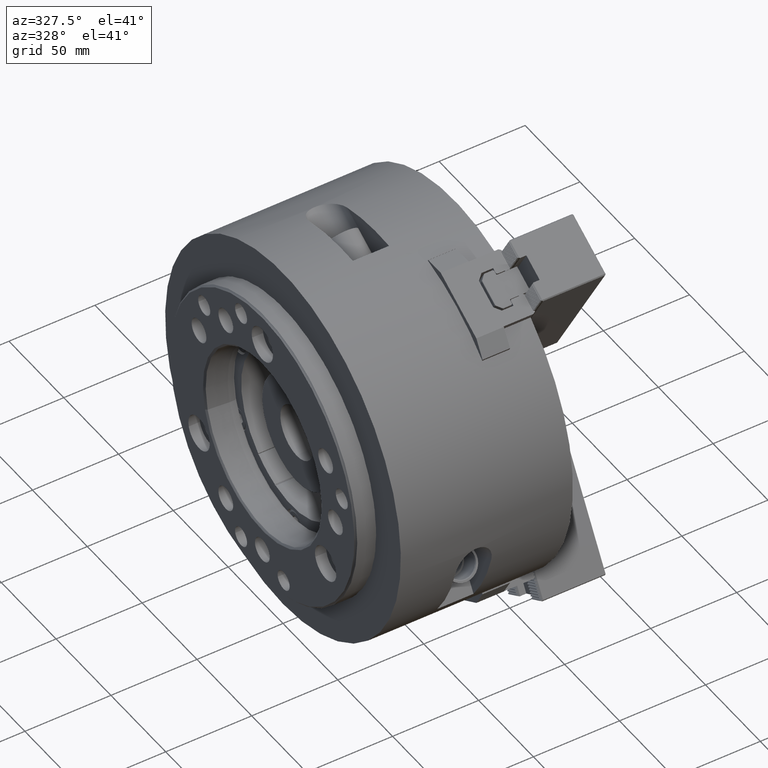
[diagram: clean part render]
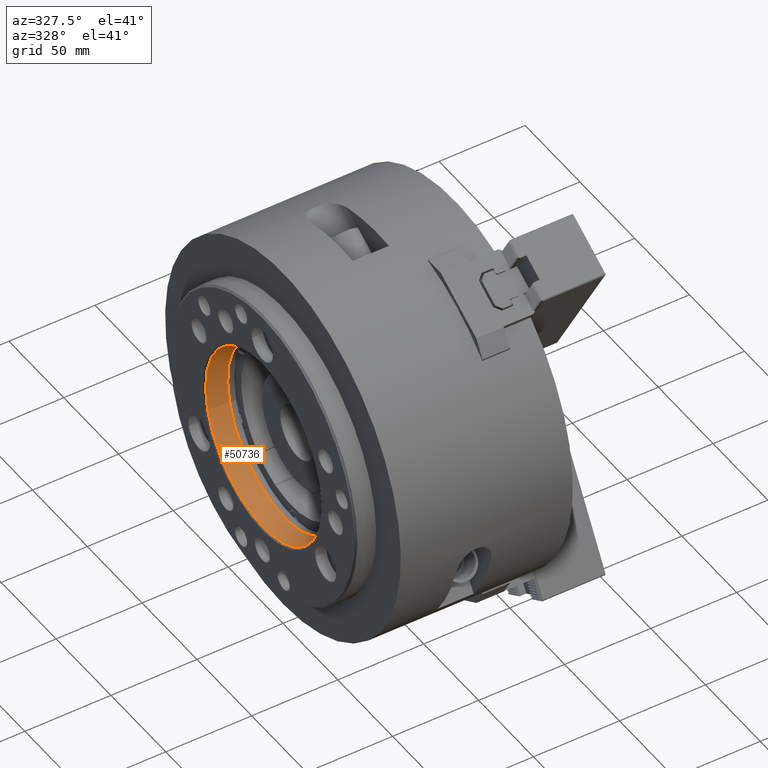
[diagram: same view with one face highlighted and labeled with its STEP entity id]
A machine part, auxiliary view. The second image highlights one B-rep face of the part: STEP entity #50736.
In plain terms, the highlighted conical surface has half-angle 7.125 deg.
Its self-contained STEP definition (entity closure, byte-faithful):
#15826=ORIENTED_EDGE('',*,*,#30600,.F.);
#15827=ORIENTED_EDGE('',*,*,#30601,.T.);
#30600=EDGE_CURVE('',#42153,#42153,#37995,.T.);
#30601=EDGE_CURVE('',#42154,#42154,#37996,.T.);
#37995=CIRCLE('',#53990,51.6);
#37996=CIRCLE('',#53991,53.0808078986321);
#38853=EDGE_LOOP('',(#15826));
#38854=EDGE_LOOP('',(#15827));
#42153=VERTEX_POINT('',#71635);
#42154=VERTEX_POINT('',#71637);
#47285=FACE_BOUND('',#38853,.T.);
#47286=FACE_BOUND('',#38854,.T.);
#50584=CONICAL_SURFACE('',#53989,51.6,0.124354709204596);
#50736=ADVANCED_FACE('',(#47285,#47286),#50584,.F.);
#53989=AXIS2_PLACEMENT_3D('',#71633,#57761,#57762);
#53990=AXIS2_PLACEMENT_3D('',#71634,#57763,#57764);
#53991=AXIS2_PLACEMENT_3D('',#71636,#57765,#57766);
#57761=DIRECTION('',(-1.,0.,0.));
#57762=DIRECTION('',(0.,0.965925826289065,-0.258819045102534));
#57763=DIRECTION('',(-1.,0.,0.));
#57764=DIRECTION('',(0.,0.965925826289065,-0.258819045102534));
#57765=DIRECTION('',(-1.,0.,0.));
#57766=DIRECTION('',(0.,0.965925826289065,-0.258819045102534));
#71633=CARTESIAN_POINT('',(-99.2919705376407,1.78647059178206E-29,4.33680868994202E-14));
#71634=CARTESIAN_POINT('',(-99.2919705376407,1.78647059178206E-29,4.33680868994202E-14));
#71635=CARTESIAN_POINT('',(-99.2919705376407,49.8417726365157,-13.3550627272907));
#71636=CARTESIAN_POINT('',(-111.138461191661,1.78647059178206E-29,4.33680868994202E-14));
#71637=CARTESIAN_POINT('',(-111.138461191661,51.2721232295773,-13.738324013595));